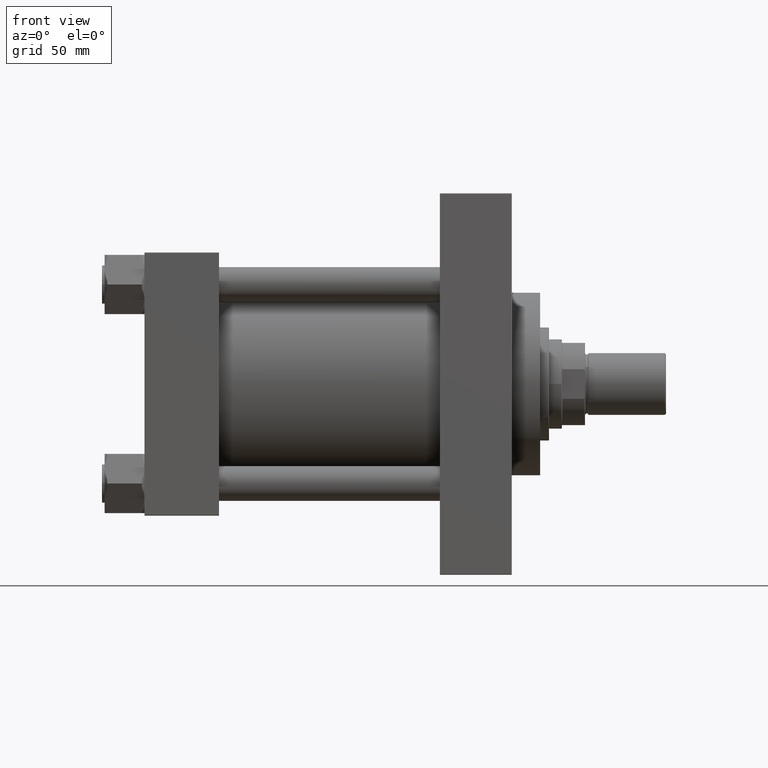
[diagram: clean part render]
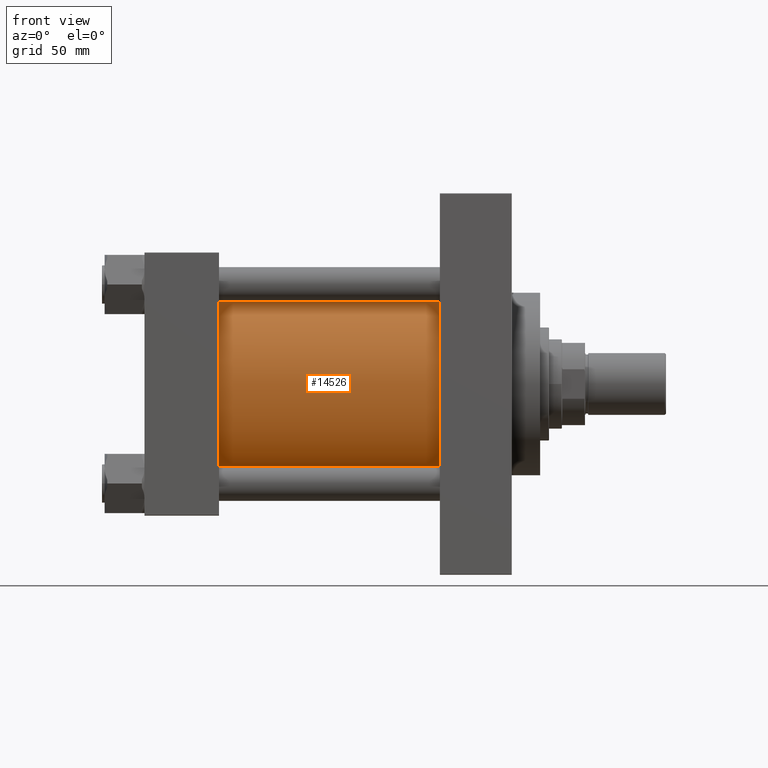
[diagram: same view with one face highlighted and labeled with its STEP entity id]
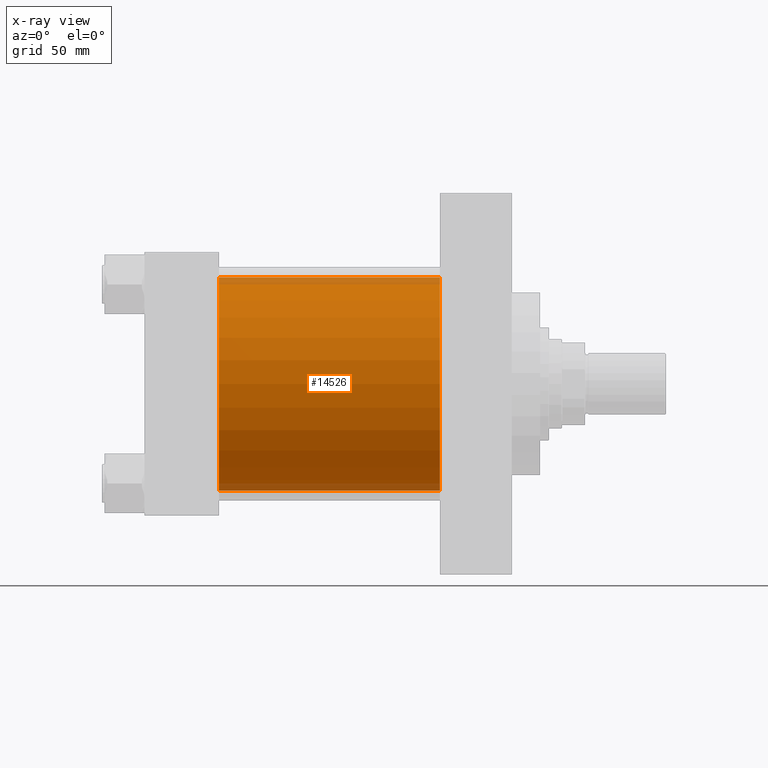
[diagram: x-ray of the same camera — body ghosted, the highlighted face saturated]
A machine part, front view. The second image highlights one B-rep face of the part: STEP entity #14526.
The next image is the same camera in x-ray: the body ghosted, the highlighted face saturated — about 7% of this face is hidden behind the body in this view.
In plain terms, the highlighted cylindrical surface (partial cylindrical patch) has radius 83 mm, axis along (-1, -0, -0).
Its self-contained STEP definition (entity closure, byte-faithful):
#1710 = LINE ( 'NONE', #20695, #13463 ) ;
#2136 = CARTESIAN_POINT ( 'NONE',  ( 57.99999999999999289, -2.602085213965210642E-15, 0.000000000000000000 ) ) ;
#4367 = EDGE_CURVE ( 'NONE', #19172, #17432, #1710, .T. ) ;
#4654 = EDGE_CURVE ( 'NONE', #17432, #32796, #18144, .T. ) ;
#6379 = CARTESIAN_POINT ( 'NONE',  ( 57.99999999999999289, -2.602085213965210642E-15, 83.00000000000000000 ) ) ;
#7196 = DIRECTION ( 'NONE',  ( 0.000000000000000000, 0.000000000000000000, 1.000000000000000000 ) ) ;
#7197 = CARTESIAN_POINT ( 'NONE',  ( 57.99999999999999289, 7.562483218957820855E-15, -83.00000000000000000 ) ) ;
#7250 = CARTESIAN_POINT ( 'NONE',  ( 229.9999999999999716, 7.562483218957820855E-15, -83.00000000000000000 ) ) ;
#9974 = DIRECTION ( 'NONE',  ( -1.000000000000000000, -0.000000000000000000, -0.000000000000000000 ) ) ;
#10188 = AXIS2_PLACEMENT_3D ( 'NONE', #14014, #43727, #7196 ) ;
#11247 = DIRECTION ( 'NONE',  ( 1.000000000000000000, 0.000000000000000000, 0.000000000000000000 ) ) ;
#11442 = EDGE_LOOP ( 'NONE', ( #23757, #21930, #36352, #32851 ) ) ;
#13463 = VECTOR ( 'NONE', #9974, 1000.000000000000000 ) ;
#14014 = CARTESIAN_POINT ( 'NONE',  ( 229.9999999999999716, -2.602085213965210642E-15, 0.000000000000000000 ) ) ;
#14526 = ADVANCED_FACE ( 'NONE', ( #40557 ), #32497, .T. ) ;
#17432 = VERTEX_POINT ( 'NONE', #6379 ) ;
#18144 = CIRCLE ( 'NONE', #37571, 83.00000000000000000 ) ;
#18930 = LINE ( 'NONE', #7250, #23646 ) ;
#19172 = VERTEX_POINT ( 'NONE', #20835 ) ;
#20695 = CARTESIAN_POINT ( 'NONE',  ( 229.9999999999999716, -2.602085213965210642E-15, 83.00000000000000000 ) ) ;
#20835 = CARTESIAN_POINT ( 'NONE',  ( 229.9999999999999716, -2.602085213965210642E-15, 83.00000000000000000 ) ) ;
#20872 = DIRECTION ( 'NONE',  ( 0.000000000000000000, 0.000000000000000000, 1.000000000000000000 ) ) ;
#21930 = ORIENTED_EDGE ( 'NONE', *, *, #35071, .F. ) ;
#22445 = CARTESIAN_POINT ( 'NONE',  ( 229.9999999999999716, -2.602085213965210642E-15, 0.000000000000000000 ) ) ;
#23646 = VECTOR ( 'NONE', #25727, 1000.000000000000000 ) ;
#23757 = ORIENTED_EDGE ( 'NONE', *, *, #25875, .F. ) ;
#25727 = DIRECTION ( 'NONE',  ( -1.000000000000000000, -0.000000000000000000, -0.000000000000000000 ) ) ;
#25875 = EDGE_CURVE ( 'NONE', #31541, #32796, #18930, .T. ) ;
#26243 = CIRCLE ( 'NONE', #48076, 83.00000000000000000 ) ;
#31541 = VERTEX_POINT ( 'NONE', #35730 ) ;
#32497 = CYLINDRICAL_SURFACE ( 'NONE', #10188, 83.00000000000000000 ) ;
#32796 = VERTEX_POINT ( 'NONE', #7197 ) ;
#32851 = ORIENTED_EDGE ( 'NONE', *, *, #4654, .T. ) ;
#33864 = DIRECTION ( 'NONE',  ( 0.000000000000000000, 0.000000000000000000, -1.000000000000000000 ) ) ;
#35071 = EDGE_CURVE ( 'NONE', #19172, #31541, #26243, .T. ) ;
#35705 = DIRECTION ( 'NONE',  ( 1.000000000000000000, -0.000000000000000000, -0.000000000000000000 ) ) ;
#35730 = CARTESIAN_POINT ( 'NONE',  ( 229.9999999999999716, 7.562483218957820855E-15, -83.00000000000000000 ) ) ;
#36352 = ORIENTED_EDGE ( 'NONE', *, *, #4367, .T. ) ;
#37571 = AXIS2_PLACEMENT_3D ( 'NONE', #2136, #35705, #20872 ) ;
#40557 = FACE_OUTER_BOUND ( 'NONE', #11442, .T. ) ;
#43727 = DIRECTION ( 'NONE',  ( -1.000000000000000000, -0.000000000000000000, -0.000000000000000000 ) ) ;
#48076 = AXIS2_PLACEMENT_3D ( 'NONE', #22445, #11247, #33864 ) ;